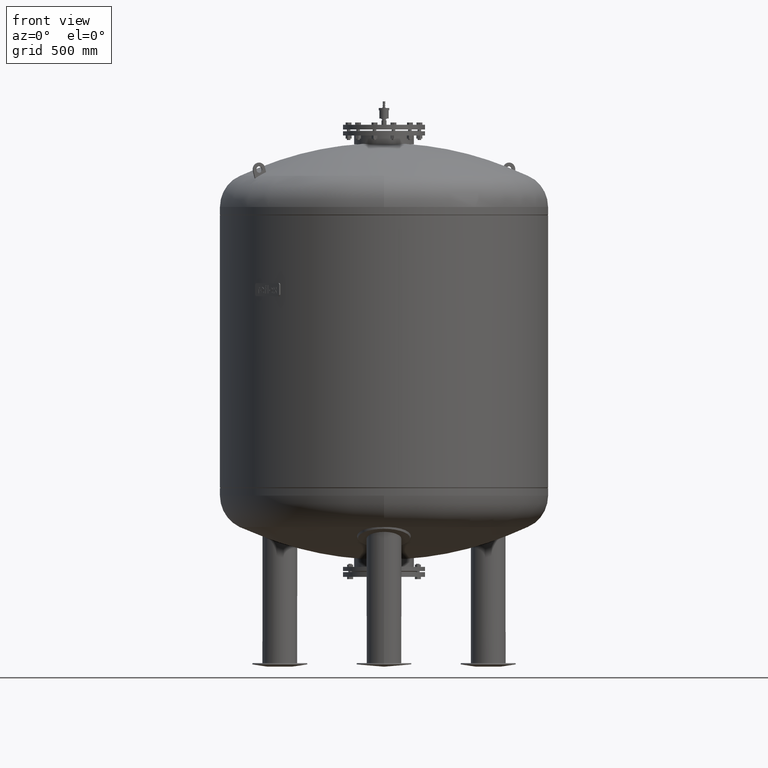
[diagram: clean part render]
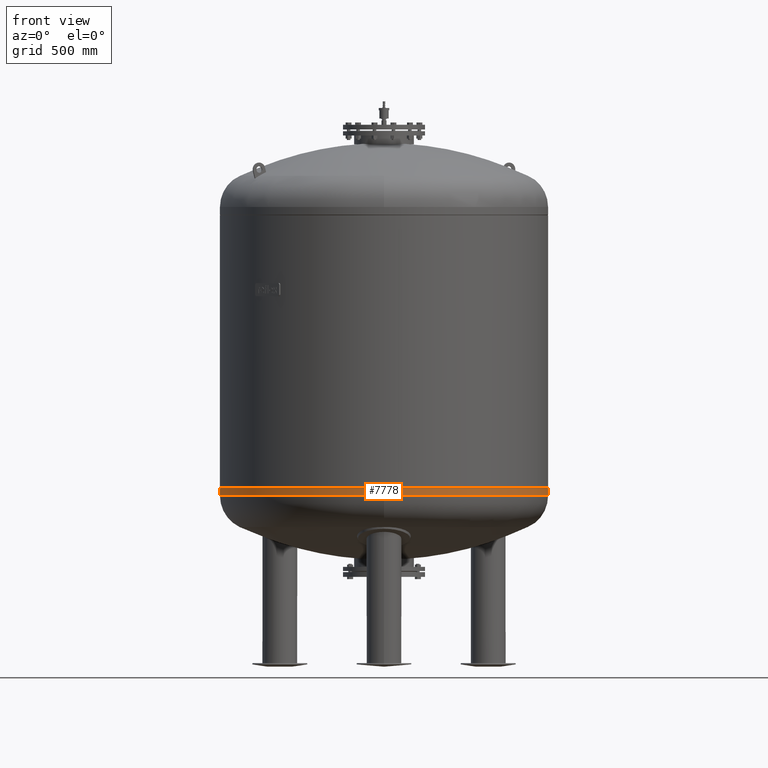
[diagram: same view with one face highlighted and labeled with its STEP entity id]
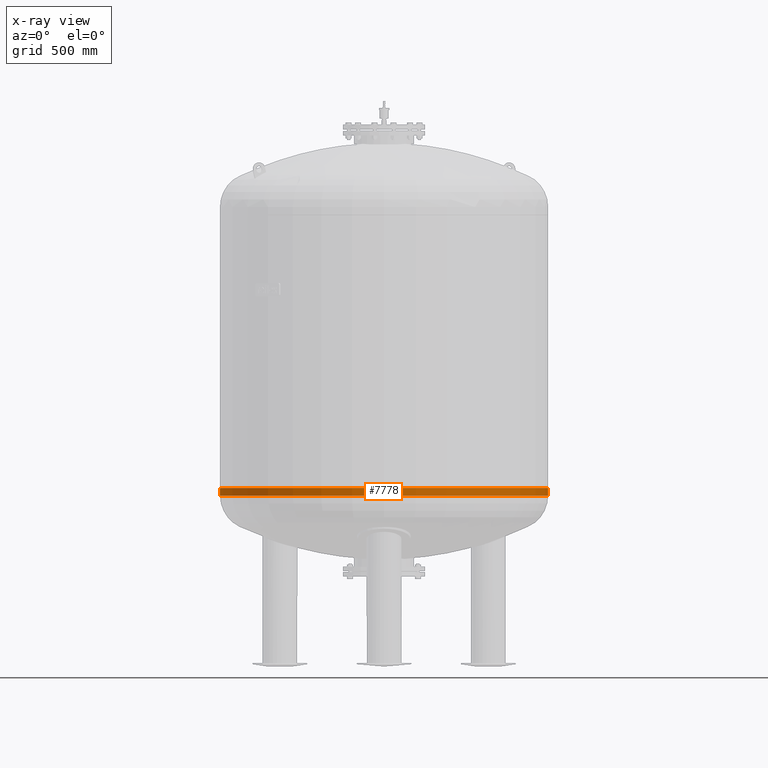
[diagram: x-ray of the same camera — body ghosted, the highlighted face saturated]
A machine part, front view. The second image highlights one B-rep face of the part: STEP entity #7778.
The next image is the same camera in x-ray: the body ghosted, the highlighted face saturated — about 0% of this face is hidden behind the body in this view.
In plain terms, the highlighted cylindrical surface (partial cylindrical patch) has radius 750 mm, axis along (-0, -0, 1).
Its self-contained STEP definition (entity closure, byte-faithful):
#7626=CARTESIAN_POINT('',(-750.0,-6.062002E-014,819.999999999999890));
#7627=VERTEX_POINT('',#7626);
#7628=CARTESIAN_POINT('',(-750.0,-5.423428E-014,785.237667415897930));
#7629=VERTEX_POINT('',#7628);
#7630=CARTESIAN_POINT('',(-750.0,-6.062002E-014,819.999999999999890));
#7631=DIRECTION('',(0.0,0.0,-1.0));
#7632=VECTOR('',#7631,34.762332584101955);
#7633=LINE('',#7630,#7632);
#7634=EDGE_CURVE('',#7627,#7629,#7633,.T.);
#7636=CARTESIAN_POINT('',(750.0,3.122546E-014,820.000000000000110));
#7637=VERTEX_POINT('',#7636);
#7645=CARTESIAN_POINT('',(750.0,3.761120E-014,785.237667415898160));
#7646=VERTEX_POINT('',#7645);
#7647=CARTESIAN_POINT('',(750.0,3.122546E-014,820.000000000000110));
#7648=DIRECTION('',(0.0,0.0,-1.0));
#7649=VECTOR('',#7648,34.762332584101955);
#7650=LINE('',#7647,#7649);
#7651=EDGE_CURVE('',#7637,#7646,#7650,.T.);
#7677=CARTESIAN_POINT('',(-7.105427E-014,-750.0,785.237667415898040));
#7678=VERTEX_POINT('',#7677);
#7688=CARTESIAN_POINT('',(-5.075605E-014,-5.423428E-014,785.237667415898160));
#7689=DIRECTION('',(0.0,0.0,1.0));
#7690=DIRECTION('',(-1.0,0.0,0.0));
#7691=AXIS2_PLACEMENT_3D('',#7688,#7689,#7690);
#7692=CIRCLE('',#7691,750.0);
#7693=EDGE_CURVE('',#7629,#7678,#7692,.T.);
#7750=CARTESIAN_POINT('',(-5.075605E-014,-5.423428E-014,785.237667415898160));
#7751=DIRECTION('',(0.0,0.0,1.0));
#7752=DIRECTION('',(-1.0,0.0,0.0));
#7753=AXIS2_PLACEMENT_3D('',#7750,#7751,#7752);
#7754=CIRCLE('',#7753,750.0);
#7755=EDGE_CURVE('',#7678,#7646,#7754,.T.);
#7760=CARTESIAN_POINT('',(-5.374415E-014,-5.742715E-014,802.618833707949080));
#7761=DIRECTION('',(-1.719159E-016,-1.836970E-016,1.0));
#7762=DIRECTION('',(-1.0,0.0,0.0));
#7763=AXIS2_PLACEMENT_3D('',#7760,#7761,#7762);
#7764=CYLINDRICAL_SURFACE('',#7763,750.0);
#7765=ORIENTED_EDGE('',*,*,#7634,.T.);
#7766=ORIENTED_EDGE('',*,*,#7693,.T.);
#7767=ORIENTED_EDGE('',*,*,#7755,.T.);
#7768=ORIENTED_EDGE('',*,*,#7651,.F.);
#7769=CARTESIAN_POINT('',(-5.673224E-014,-6.062002E-014,820.0));
#7770=DIRECTION('',(0.0,0.0,1.0));
#7771=DIRECTION('',(-1.0,0.0,0.0));
#7772=AXIS2_PLACEMENT_3D('',#7769,#7770,#7771);
#7773=CIRCLE('',#7772,750.0);
#7774=EDGE_CURVE('',#7627,#7637,#7773,.T.);
#7775=ORIENTED_EDGE('',*,*,#7774,.F.);
#7776=EDGE_LOOP('',(#7765,#7766,#7767,#7768,#7775));
#7777=FACE_OUTER_BOUND('',#7776,.T.);
#7778=ADVANCED_FACE('',(#7777),#7764,.T.);